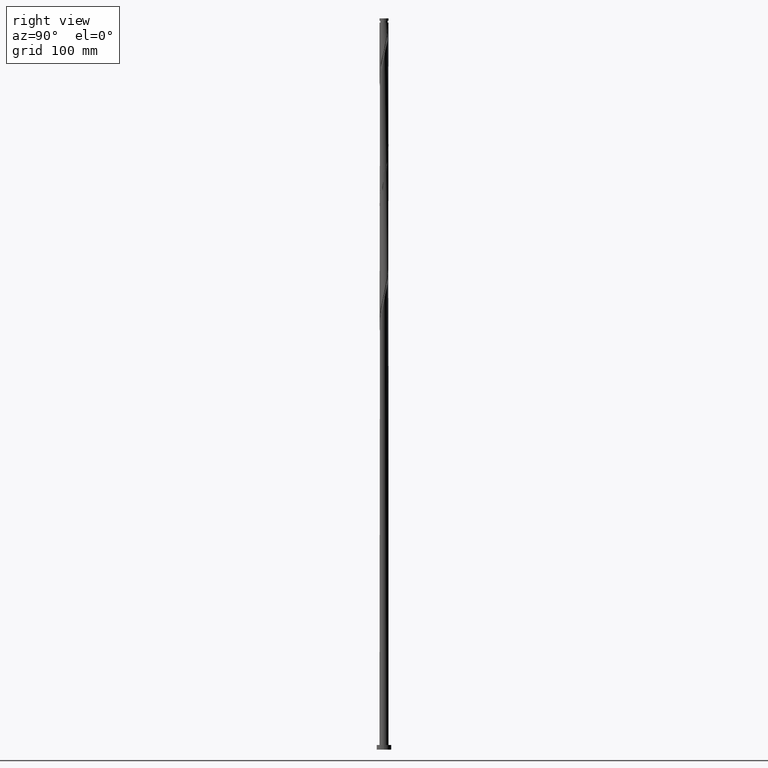
[diagram: clean part render]
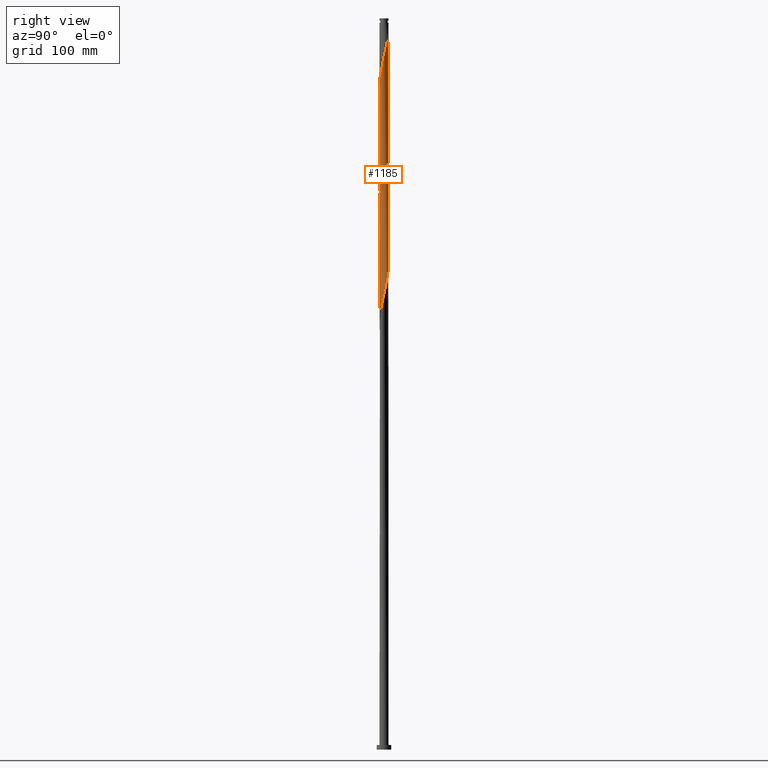
[diagram: same view with one face highlighted and labeled with its STEP entity id]
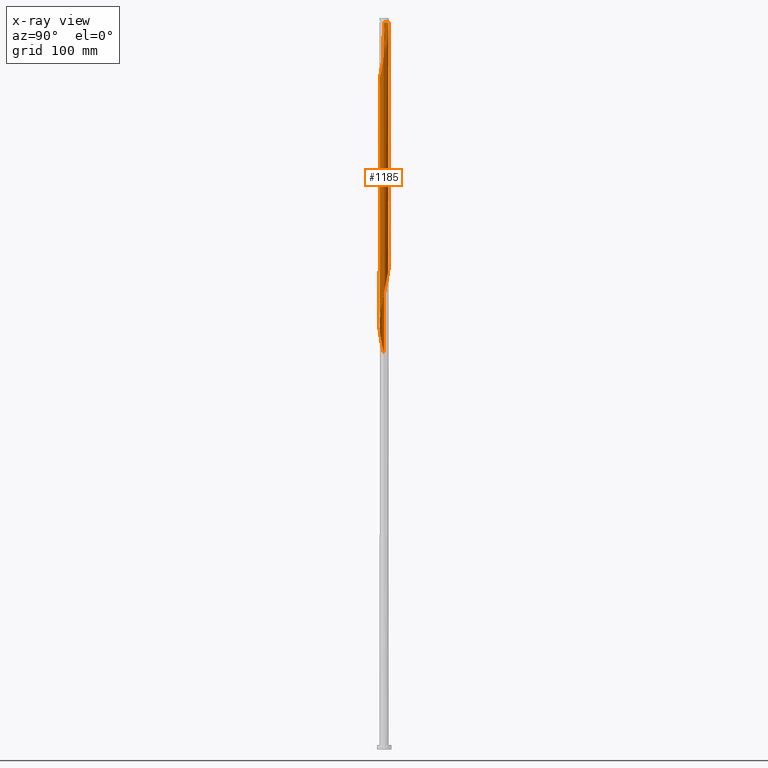
[diagram: x-ray of the same camera — body ghosted, the highlighted face saturated]
A machine part, right view. The second image highlights one B-rep face of the part: STEP entity #1185.
The next image is the same camera in x-ray: the body ghosted, the highlighted face saturated — about 0% of this face is hidden behind the body in this view.
In plain terms, the highlighted cylindrical surface (bore or boss wall) has radius 5 mm, axis along (-0, -0, -1).
Its self-contained STEP definition (entity closure, byte-faithful):
#9 = CARTESIAN_POINT ( 'NONE',  ( 4.886971201682697163, 1.057124625540423413, 504.1873591156045222 ) ) ;
#15 = ORIENTED_EDGE ( 'NONE', *, *, #484, .F. ) ;
#21 = CARTESIAN_POINT ( 'NONE',  ( -0.1749036129582328125, -4.996939936218382172, 465.5908678875343298 ) ) ;
#29 = CARTESIAN_POINT ( 'NONE',  ( -0.6499511258119761159, -4.957576377026965631, 721.7312187647274868 ) ) ;
#45 = CARTESIAN_POINT ( 'NONE',  ( -4.965429427042145960, -0.5869502577424863254, 693.6610433261308799 ) ) ;
#56 = CARTESIAN_POINT ( 'NONE',  ( 4.886971201682704269, -1.057124625540427854, 753.3101661331485275 ) ) ;
#66 = CARTESIAN_POINT ( 'NONE',  ( -2.931160507146904681, -4.050715749264861110, 711.2049029752537308 ) ) ;
#86 = CARTESIAN_POINT ( 'NONE',  ( 2.889359162484386623, 4.101616499374434177, 653.3101661331485275 ) ) ;
#104 = CARTESIAN_POINT ( 'NONE',  ( 1.457076892166168980, 4.782983057707340890, 784.8891135015696818 ) ) ;
#110 = CARTESIAN_POINT ( 'NONE',  ( -0.1749036129582328125, -4.996939936218382172, 598.9242012208676442 ) ) ;
#121 = CARTESIAN_POINT ( 'NONE',  ( 4.493269221328091589, 2.232081087783037709, 509.4505170103415139 ) ) ;
#126 = CARTESIAN_POINT ( 'NONE',  ( 4.801098604423229332, 1.396227843371344424, 763.8364819226222835 ) ) ;
#130 = CARTESIAN_POINT ( 'NONE',  ( -1.853406167889784628, 4.662246224150025320, 674.3627977120958121 ) ) ;
#134 = CARTESIAN_POINT ( 'NONE',  ( -4.974567045559859402, -0.6521786465401323563, 569.0996398173590478 ) ) ;
#136 = ORIENTED_EDGE ( 'NONE', *, *, #1807, .T. ) ;
#147 = CARTESIAN_POINT ( 'NONE',  ( -3.525055956709929106, -3.570102908858077573, 583.1347275366572376 ) ) ;
#161 = CARTESIAN_POINT ( 'NONE',  ( 3.207207559597159641, 3.835859704116254321, 518.2224468349027120 ) ) ;
#168 = FACE_OUTER_BOUND ( 'NONE', #1891, .T. ) ;
#173 = CARTESIAN_POINT ( 'NONE',  ( -4.886971201682697163, -1.057124625540422302, 437.5206924489379503 ) ) ;
#182 = CARTESIAN_POINT ( 'NONE',  ( -0.5889618610978728519, -4.982447009647488656, 463.8364819226221698 ) ) ;
#194 = CARTESIAN_POINT ( 'NONE',  ( -2.532103672393922977, -4.311432591639259293, 455.0645520980608012 ) ) ;
#202 = CARTESIAN_POINT ( 'NONE',  ( -2.595508630546288664, -4.293598633609439830, 712.9592889401660614 ) ) ;
#205 = CARTESIAN_POINT ( 'NONE',  ( -4.087607399536863362, 2.879490536058676664, 686.6434994664817850 ) ) ;
#212 = CARTESIAN_POINT ( 'NONE',  ( 4.994316278799820985, -0.2383378008524582869, 756.8189380629731886 ) ) ;
#234 = CARTESIAN_POINT ( 'NONE',  ( -4.505806327405627698, -2.167419973127376664, 700.6785871857800885 ) ) ;
#244 = CARTESIAN_POINT ( 'NONE',  ( 0.1749036129582310084, -4.996939936218388389, 725.2399906945519206 ) ) ;
#248 = CARTESIAN_POINT ( 'NONE',  ( -4.493269221328091589, -2.232081087783038154, 442.7838503436748852 ) ) ;
#255 = DIRECTION ( 'NONE',  ( -0.000000000000000000, -0.000000000000000000, -1.000000000000000000 ) ) ;
#268 = CARTESIAN_POINT ( 'NONE',  ( 4.994316278799814768, 0.2383378008524554004, 634.0119205191134597 ) ) ;
#277 = CARTESIAN_POINT ( 'NONE',  ( -1.457076892166162319, 4.782983057707333785, 672.6084117471832542 ) ) ;
#283 = CARTESIAN_POINT ( 'NONE',  ( -0.5889618610978690771, 4.982447009647495761, 793.6610433261313347 ) ) ;
#287 = CARTESIAN_POINT ( 'NONE',  ( -0.2391546351814064497, 5.011432862789276577, 667.3452538524467172 ) ) ;
#289 = CARTESIAN_POINT ( 'NONE',  ( -4.799375357805534925, -1.462070604540713914, 572.6084117471834816 ) ) ;
#296 = LINE ( 'NONE', #1757, #829 ) ;
#299 = CARTESIAN_POINT ( 'NONE',  ( -4.064598413571486546, -2.941206217551772362, 579.6259556068328038 ) ) ;
#301 = CARTESIAN_POINT ( 'NONE',  ( -5.000000000000007994, -4.329326641535641108E-16, 691.1634970902542818 ) ) ;
#305 = AXIS2_PLACEMENT_3D ( 'NONE', #980, #255, #1145 ) ;
#308 = DIRECTION ( 'NONE',  ( -0.000000000000000000, -0.000000000000000000, -1.000000000000000000 ) ) ;
#310 = CARTESIAN_POINT ( 'NONE',  ( -2.174848182303464661, -4.521248683904080856, 590.1522713963063325 ) ) ;
#314 = EDGE_CURVE ( 'NONE', #340, #1834, #1340, .T. ) ;
#325 = CARTESIAN_POINT ( 'NONE',  ( -4.493269221328091589, -2.232081087783038154, 576.1171836770082564 ) ) ;
#333 = CARTESIAN_POINT ( 'NONE',  ( -4.886971201682697163, -1.057124625540422302, 570.8540257822712647 ) ) ;
#340 = VERTEX_POINT ( 'NONE', #301 ) ;
#347 = CARTESIAN_POINT ( 'NONE',  ( 0.6499511258119734514, -4.957576377026960301, 469.0996398173589910 ) ) ;
#357 = CARTESIAN_POINT ( 'NONE',  ( -3.207207559597157420, -3.835859704116256097, 451.5557801682361401 ) ) ;
#368 = CARTESIAN_POINT ( 'NONE',  ( 2.931160507146896244, -4.050715749264857557, 479.6259556068326333 ) ) ;
#376 = CARTESIAN_POINT ( 'NONE',  ( 4.493269221328098695, -2.232081087783042594, 748.0470082384116495 ) ) ;
#379 = CARTESIAN_POINT ( 'NONE',  ( 4.646322289566814590, 1.847075846161874590, 507.6961310454291265 ) ) ;
#386 = CARTESIAN_POINT ( 'NONE',  ( -1.457076892166166315, -4.782983057707340890, 718.2224468349028257 ) ) ;
#413 = CARTESIAN_POINT ( 'NONE',  ( 2.174848182303464661, -4.521248683904088850, 734.0119205191135734 ) ) ;
#422 = CARTESIAN_POINT ( 'NONE',  ( 4.801098604423221339, -1.396227843371345312, 626.9943766594643648 ) ) ;
#424 = CARTESIAN_POINT ( 'NONE',  ( -4.999999999999915623, 0.000000000000000000, 795.4154292910432105 ) ) ;
#427 = CARTESIAN_POINT ( 'NONE',  ( 1.457076892166162319, -4.782983057707333785, 472.6084117471835384 ) ) ;
#434 = CARTESIAN_POINT ( 'NONE',  ( 5.000000000000000000, -5.911770172579741004E-15, 633.0006948251653967 ) ) ;
#452 = CARTESIAN_POINT ( 'NONE',  ( 3.266812383747518922, 3.807832864920281501, 776.1171836770084838 ) ) ;
#459 = CARTESIAN_POINT ( 'NONE',  ( 1.401013013115388173, 4.817552990352508502, 526.9943766594642511 ) ) ;
#463 = CARTESIAN_POINT ( 'NONE',  ( 2.595508630546292217, 4.293598633609438942, 779.6259556068326901 ) ) ;
#464 = VERTEX_POINT ( 'NONE', #1453 ) ;
#471 = CARTESIAN_POINT ( 'NONE',  ( -3.557909197405964008, 3.513016103437906157, 549.8013942033238663 ) ) ;
#473 = DIRECTION ( 'NONE',  ( -0.000000000000000000, -0.000000000000000000, -1.000000000000000000 ) ) ;
#484 = EDGE_CURVE ( 'NONE', #895, #1834, #675, .T. ) ;
#485 = CARTESIAN_POINT ( 'NONE',  ( 3.266812383747511817, -3.807832864920277061, 614.7136749050782782 ) ) ;
#493 = CARTESIAN_POINT ( 'NONE',  ( 1.787930597709427083, 4.669400837128293347, 525.2399906945518069 ) ) ;
#505 = CARTESIAN_POINT ( 'NONE',  ( -0.5889618610978728519, -4.982447009647488656, 597.1698152559552000 ) ) ;
#515 = CARTESIAN_POINT ( 'NONE',  ( 2.595508630546283335, -4.293598633609436277, 477.8715696419204164 ) ) ;
#524 = CIRCLE ( 'NONE', #305, 4.999999999999915623 ) ;
#527 = CARTESIAN_POINT ( 'NONE',  ( -2.931160507146898020, 4.050715749264855781, 679.6259556068326901 ) ) ;
#535 = CARTESIAN_POINT ( 'NONE',  ( 0.5889618610978697433, -4.982447009647495761, 726.9943766594644785 ) ) ;
#537 = CARTESIAN_POINT ( 'NONE',  ( 4.994316278799814768, 0.2383378008524554004, 500.6785871857800316 ) ) ;
#545 = CARTESIAN_POINT ( 'NONE',  ( -3.794827185140709158, -3.255654563204924745, 448.0470082384115926 ) ) ;
#547 = EDGE_CURVE ( 'NONE', #1225, #895, #2077, .T. ) ;
#553 = CARTESIAN_POINT ( 'NONE',  ( -1.853406167889788625, -4.662246224150031537, 716.4680608699908362 ) ) ;
#569 = VERTEX_POINT ( 'NONE', #1694 ) ;
#582 = CARTESIAN_POINT ( 'NONE',  ( 5.000000000000000000, -5.911770172579741004E-15, 633.0006948251653967 ) ) ;
#590 = CARTESIAN_POINT ( 'NONE',  ( 4.916793342044511128, -0.9983974706497565910, 495.4154292910432673 ) ) ;
#601 = CARTESIAN_POINT ( 'NONE',  ( 4.493269221328091589, 2.232081087783037709, 642.7838503436747715 ) ) ;
#607 = CARTESIAN_POINT ( 'NONE',  ( 2.224457399218039644, 4.477922428879734795, 781.3803415717450207 ) ) ;
#609 = ORIENTED_EDGE ( 'NONE', *, *, #960, .T. ) ;
#613 = CARTESIAN_POINT ( 'NONE',  ( 4.278933817449791732, 2.586643652667402371, 644.5382363085869883 ) ) ;
#620 = CARTESIAN_POINT ( 'NONE',  ( 1.060747616442546004, 4.903719891264652020, 786.6434994664817850 ) ) ;
#625 = CARTESIAN_POINT ( 'NONE',  ( 3.849006011064415311, -3.218199341955539250, 618.2224468349030531 ) ) ;
#632 = ORIENTED_EDGE ( 'NONE', *, *, #2066, .F. ) ;
#635 = CARTESIAN_POINT ( 'NONE',  ( 2.532103672393923866, 4.311432591639258405, 655.0645520980607444 ) ) ;
#637 = CARTESIAN_POINT ( 'NONE',  ( 1.060747616442539787, -4.903719891264644914, 604.1873591156045222 ) ) ;
#643 = CARTESIAN_POINT ( 'NONE',  ( 0.1749036129582320631, 4.996939936218380396, 665.5908678875345004 ) ) ;
#648 = CARTESIAN_POINT ( 'NONE',  ( -4.278933817449789956, -2.586643652667403703, 577.8715696419204733 ) ) ;
#659 = CARTESIAN_POINT ( 'NONE',  ( -2.931160507146898020, 4.050715749264855781, 546.2926222734994326 ) ) ;
#670 = CARTESIAN_POINT ( 'NONE',  ( -0.6499511258119736734, 4.957576377026959413, 535.7663064840256766 ) ) ;
#675 =( BOUNDED_CURVE ( )  B_SPLINE_CURVE ( 2, ( #582, #789, #1284, #1979, #422, #1114, #1823, #2167, #1512, #625, #2041, #485, #799, #2061, #1699, #1170, #1326, #637, #1034, #1337, #110, #505, #1372, #2213, #2234, #310, #1529, #1899, #2222, #147, #1182, #299, #648, #325, #1877, #289, #333, #134, #1491, #1195, #2028, #833, #2200, #808, #820, #1502, #1856, #1688, #471, #1162, #659, #1868, #998, #1353, #1008, #2188, #670, #1713, #1363, #2018, #2052, #459, #493, #1888, #1725, #1024, #161, #845, #1540, #1151, #988, #121, #379, #1567, #9, #1045, #537, #1908, #1074, #590, #885, #1987, #1417, #1579, #1242, #1747, #1941, #1218, #368, #515, #1591, #1405, #427, #719, #347, #1917, #21, #182, #1737, #2113, #708, #939, #194, #2102, #357, #1205, #545, #763, #1290, #248, #1783, #1232, #173, #2155, #874, #1929, #1066 ),
 .UNSPECIFIED., .F., .T. ) 
 B_SPLINE_CURVE_WITH_KNOTS ( ( 3, 2, 2, 2, 2, 2, 2, 2, 2, 2, 2, 2, 2, 2, 2, 2, 2, 2, 2, 2, 2, 2, 2, 2, 2, 2, 2, 2, 2, 2, 2, 2, 2, 2, 2, 2, 2, 2, 2, 2, 2, 2, 2, 2, 2, 2, 2, 2, 2, 2, 2, 2, 2, 2, 2, 2, 2, 2, 3 ),
 ( 0.5545295809515957686, 0.5592105263157894912, 0.5657894736842105088, 0.5723684210526315264, 0.5789473684210526550, 0.5855263157894736725, 0.5921052631578946901, 0.5986842105263158187, 0.6052631578947368363, 0.6118421052631578538, 0.6184210526315789824, 0.6250000000000000000, 0.6315789473684210176, 0.6381578947368421462, 0.6447368421052631637, 0.6513157894736841813, 0.6578947368421053099, 0.6644736842105263275, 0.6710526315789473450, 0.6776315789473684736, 0.6842105263157894912, 0.6907894736842105088, 0.6973684210526315264, 0.7039473684210526550, 0.7105263157894736725, 0.7171052631578946901, 0.7236842105263158187, 0.7302631578947368363, 0.7368421052631578538, 0.7434210526315789824, 0.7500000000000000000, 0.7565789473684210176, 0.7631578947368421462, 0.7697368421052631637, 0.7763157894736841813, 0.7828947368421053099, 0.7894736842105263275, 0.7960526315789473450, 0.8026315789473684736, 0.8092105263157894912, 0.8157894736842105088, 0.8223684210526315264, 0.8289473684210526550, 0.8355263157894736725, 0.8421052631578946901, 0.8486842105263158187, 0.8552631578947368363, 0.8618421052631578538, 0.8684210526315789824, 0.8750000000000000000, 0.8815789473684210176, 0.8881578947368422572, 0.8947368421052630527, 0.9013157894736842923, 0.9078947368421053099, 0.9144736842105263275, 0.9210526315789473450, 0.9276315789473683626, 0.9295295809515957686 ),
 .UNSPECIFIED. ) 
 CURVE ( )  GEOMETRIC_REPRESENTATION_ITEM ( )  RATIONAL_B_SPLINE_CURVE ( ( 0.9078162034606489517, 0.9068816855934562771, 0.9090909090909780055, 0.9059859027334048465, 0.9090909090909780055, 0.9059859027334048465, 0.9090909090909780055, 0.9059859027334048465, 0.9090909090909780055, 0.9059859027334048465, 0.9090909090909780055, 0.9059859027334048465, 0.9090909090909780055, 0.9059859027334048465, 0.9090909090909780055, 0.9059859027334048465, 0.9090909090909780055, 0.9059859027334048465, 0.9090909090909780055, 0.9059859027334048465, 0.9090909090909780055, 0.9059859027334048465, 0.9090909090909780055, 0.9059859027334048465, 0.9090909090909780055, 0.9059859027334048465, 0.9090909090909780055, 0.9059859027334048465, 0.9090909090909780055, 0.9059859027334048465, 0.9090909090909780055, 0.9059859027334048465, 0.9090909090909780055, 0.9059859027334048465, 0.9090909090909780055, 0.9059859027334048465, 0.9090909090909780055, 0.9059859027334048465, 0.9090909090909780055, 0.9059859027334048465, 0.9090909090909780055, 0.9059859027334048465, 0.9090909090909780055, 0.9059859027334048465, 0.9090909090909780055, 0.9059859027334048465, 0.9090909090909780055, 0.9059859027334048465, 0.9090909090909780055, 0.9059859027334048465, 0.9090909090909780055, 0.9059859027334048465, 0.9090909090909780055, 0.9059859027334048465, 0.9090909090909780055, 0.9059859027334048465, 0.9090909090909780055, 0.9059859027334048465, 0.9090909090909780055, 0.9059859027334048465, 0.9090909090909780055, 0.9059859027334048465, 0.9090909090909780055, 0.9059859027334048465, 0.9090909090909780055, 0.9059859027334048465, 0.9090909090909780055, 0.9059859027334048465, 0.9090909090909780055, 0.9059859027334048465, 0.9090909090909780055, 0.9059859027334048465, 0.9090909090909780055, 0.9059859027334048465, 0.9090909090909780055, 0.9059859027334048465, 0.9090909090909780055, 0.9059859027334048465, 0.9090909090909780055, 0.9059859027334048465, 0.9090909090909780055, 0.9059859027334048465, 0.9090909090909780055, 0.9059859027334048465, 0.9090909090909780055, 0.9059859027334048465, 0.9090909090909780055, 0.9059859027334048465, 0.9090909090909780055, 0.9059859027334048465, 0.9090909090909780055, 0.9059859027334048465, 0.9090909090909780055, 0.9059859027334048465, 0.9090909090909780055, 0.9059859027334048465, 0.9090909090909780055, 0.9059859027334048465, 0.9090909090909780055, 0.9059859027334048465, 0.9090909090909780055, 0.9059859027334048465, 0.9090909090909780055, 0.9059859027334048465, 0.9090909090909780055, 0.9059859027334048465, 0.9090909090909780055, 0.9059859027334048465, 0.9090909090909780055, 0.9059859027334048465, 0.9090909090909780055, 0.9059859027334048465, 0.9090909090909780055, 0.9059859027334048465, 0.9090909090909780055, 0.9081951262309265749, 0.9078162034606489517 ) ) 
 REPRESENTATION_ITEM ( '' )  );
#681 = CARTESIAN_POINT ( 'NONE',  ( -4.326208788009311412, 2.540781730161816743, 688.3978854313940019 ) ) ;
#708 = CARTESIAN_POINT ( 'NONE',  ( -1.787930597709424640, -4.669400837128295123, 458.5733240278852918 ) ) ;
#715 = CARTESIAN_POINT ( 'NONE',  ( 1.401013013115385286, -4.817552990352518272, 730.5031485892889123 ) ) ;
#719 = CARTESIAN_POINT ( 'NONE',  ( 1.060747616442539787, -4.903719891264644914, 470.8540257822712647 ) ) ;
#728 = CARTESIAN_POINT ( 'NONE',  ( -3.849006011064424637, -3.218199341955541026, 705.9417450805170802 ) ) ;
#736 = CARTESIAN_POINT ( 'NONE',  ( 4.974567045559866507, -0.6521786465401351318, 755.0645520980609717 ) ) ;
#747 = CARTESIAN_POINT ( 'NONE',  ( -0.2391546351814095583, -5.011432862789284570, 723.4856047296397037 ) ) ;
#759 = CARTESIAN_POINT ( 'NONE',  ( -3.266812383747518478, -3.807832864920281501, 709.4505170103416276 ) ) ;
#763 = CARTESIAN_POINT ( 'NONE',  ( -4.064598413571486546, -2.941206217551772362, 446.2926222734992621 ) ) ;
#786 = CARTESIAN_POINT ( 'NONE',  ( 5.000000000000000000, -5.911770172579741004E-15, 633.0006948251653967 ) ) ;
#789 = CARTESIAN_POINT ( 'NONE',  ( 4.999999999999998224, -0.2944932087671892074, 631.7501677109801221 ) ) ;
#799 = CARTESIAN_POINT ( 'NONE',  ( 2.931160507146896244, -4.050715749264857557, 612.9592889401659477 ) ) ;
#808 = CARTESIAN_POINT ( 'NONE',  ( -4.685403866801933326, 1.794058216092931701, 558.5733240278855192 ) ) ;
#817 = CARTESIAN_POINT ( 'NONE',  ( -2.224457399218035203, 4.477922428879730354, 676.1171836770079153 ) ) ;
#820 = CARTESIAN_POINT ( 'NONE',  ( -4.505806327405622369, 2.167419973127374888, 556.8189380629729612 ) ) ;
#829 = VECTOR ( 'NONE', #1031, 1000.000000000000000 ) ;
#833 = CARTESIAN_POINT ( 'NONE',  ( -4.916793342044511128, 0.9983974706497559248, 562.0820959577098392 ) ) ;
#845 = CARTESIAN_POINT ( 'NONE',  ( 3.525055956709929550, 3.570102908858077573, 516.4680608699906088 ) ) ;
#874 = CARTESIAN_POINT ( 'NONE',  ( -4.994316278799814768, -0.2383378008524572045, 434.0119205191134029 ) ) ;
#885 = CARTESIAN_POINT ( 'NONE',  ( 4.801098604423221339, -1.396227843371345312, 493.6610433261309936 ) ) ;
#895 = VERTEX_POINT ( 'NONE', #786 ) ;
#897 = CARTESIAN_POINT ( 'NONE',  ( -3.849006011064417088, 3.218199341955536585, 684.8891135015696818 ) ) ;
#904 = CARTESIAN_POINT ( 'NONE',  ( 4.916793342044517345, 0.9983974706497559248, 762.0820959577100666 ) ) ;
#906 =( BOUNDED_CURVE ( )  B_SPLINE_CURVE ( 2, ( #1587, #1768, #45, #1063, #1435, #1276, #234, #1631, #1950, #728, #1424, #759, #66, #202, #1971, #553, #386, #2119, #29, #747, #244, #535, #1447, #715, #1083, #413, #1238, #915, #1614, #1412, #2143, #1227, #2110, #376, #1070, #1779, #56, #736, #212, #1264, #1962, #904, #126, #1850, #2170, #1667, #2022, #2011, #1825, #452, #1154, #463, #607, #1330, #104, #620, #992, #1319, #1487, #283, #1655 ),
 .UNSPECIFIED., .F., .T. ) 
 B_SPLINE_CURVE_WITH_KNOTS ( ( 3, 2, 2, 2, 2, 2, 2, 2, 2, 2, 2, 2, 2, 2, 2, 2, 2, 2, 2, 2, 2, 2, 2, 2, 2, 2, 2, 2, 2, 2, 3 ),
 ( 0.5545295809515948804, 0.5592105263157894912, 0.5657894736842105088, 0.5723684210526316374, 0.5789473684210526550, 0.5855263157894736725, 0.5921052631578946901, 0.5986842105263157077, 0.6052631578947368363, 0.6118421052631579649, 0.6184210526315789824, 0.6250000000000000000, 0.6315789473684210176, 0.6381578947368420351, 0.6447368421052631637, 0.6513157894736842923, 0.6578947368421053099, 0.6644736842105263275, 0.6710526315789473450, 0.6776315789473683626, 0.6842105263157894912, 0.6907894736842105088, 0.6973684210526316374, 0.7039473684210526550, 0.7105263157894736725, 0.7171052631578946901, 0.7236842105263157077, 0.7302631578947368363, 0.7368421052631579649, 0.7434210526315789824, 0.7500000000000000000 ),
 .UNSPECIFIED. ) 
 CURVE ( )  GEOMETRIC_REPRESENTATION_ITEM ( )  RATIONAL_B_SPLINE_CURVE ( ( 0.9078162034606551689, 0.9068816855934616061, 0.9090909090909837786, 0.9059859027334105086, 0.9090909090909837786, 0.9059859027334105086, 0.9090909090909837786, 0.9059859027334105086, 0.9090909090909837786, 0.9059859027334105086, 0.9090909090909837786, 0.9059859027334105086, 0.9090909090909837786, 0.9059859027334105086, 0.9090909090909837786, 0.9059859027334105086, 0.9090909090909837786, 0.9059859027334105086, 0.9090909090909837786, 0.9059859027334105086, 0.9090909090909837786, 0.9059859027334105086, 0.9090909090909837786, 0.9059859027334105086, 0.9090909090909837786, 0.9059859027334105086, 0.9090909090909837786, 0.9059859027334105086, 0.9090909090909837786, 0.9059859027334105086, 0.9090909090909837786, 0.9059859027334105086, 0.9090909090909837786, 0.9059859027334105086, 0.9090909090909837786, 0.9059859027334105086, 0.9090909090909837786, 0.9059859027334105086, 0.9090909090909837786, 0.9059859027334105086, 0.9090909090909837786, 0.9059859027334105086, 0.9090909090909837786, 0.9059859027334105086, 0.9090909090909837786, 0.9059859027334105086, 0.9090909090909837786, 0.9059859027334105086, 0.9090909090909837786, 0.9059859027334105086, 0.9090909090909837786, 0.9059859027334105086, 0.9090909090909837786, 0.9059859027334105086, 0.9090909090909837786, 0.9059859027334105086, 0.9090909090909837786, 0.9059859027334105086, 0.9090909090909837786, 0.9059859027334105086, 0.9090909090909837786 ) ) 
 REPRESENTATION_ITEM ( '' )  );
#915 = CARTESIAN_POINT ( 'NONE',  ( 2.889359162484387511, -4.101616499374442171, 737.5206924489381208 ) ) ;
#939 = CARTESIAN_POINT ( 'NONE',  ( -2.174848182303464661, -4.521248683904080856, 456.8189380629730749 ) ) ;
#947 = AXIS2_PLACEMENT_3D ( 'NONE', #1547, #308, #1050 ) ;
#960 = EDGE_CURVE ( 'NONE', #464, #895, #296, .T. ) ;
#964 = CARTESIAN_POINT ( 'NONE',  ( 4.799375357805534925, 1.462070604540711249, 639.2750784138498830 ) ) ;
#972 = CARTESIAN_POINT ( 'NONE',  ( 3.207207559597159641, 3.835859704116254321, 651.5557801682361969 ) ) ;
#980 = CARTESIAN_POINT ( 'NONE',  ( 0.000000000000000000, 0.000000000000000000, 795.4154292910432105 ) ) ;
#988 = CARTESIAN_POINT ( 'NONE',  ( 4.278933817449791732, 2.586643652667402371, 511.2049029752537876 ) ) ;
#992 = CARTESIAN_POINT ( 'NONE',  ( 0.6499511258119768931, 4.957576377026967407, 788.3978854313941156 ) ) ;
#995 = CARTESIAN_POINT ( 'NONE',  ( -1.060747616442540675, 4.903719891264643138, 670.8540257822711510 ) ) ;
#998 = CARTESIAN_POINT ( 'NONE',  ( -2.224457399218035203, 4.477922428879730354, 542.7838503436746578 ) ) ;
#1005 = CARTESIAN_POINT ( 'NONE',  ( -5.000000000000000000, 1.910875207298502123E-15, 699.6673614918320254 ) ) ;
#1008 = CARTESIAN_POINT ( 'NONE',  ( -1.457076892166162319, 4.782983057707333785, 539.2750784138501103 ) ) ;
#1020 = VECTOR ( 'NONE', #473, 1000.000000000000000 ) ;
#1024 = CARTESIAN_POINT ( 'NONE',  ( 2.889359162484386623, 4.101616499374434177, 519.9768327998150426 ) ) ;
#1031 = DIRECTION ( 'NONE',  ( -0.000000000000000000, -0.000000000000000000, -1.000000000000000000 ) ) ;
#1034 = CARTESIAN_POINT ( 'NONE',  ( 0.6499511258119734514, -4.957576377026960301, 602.4329731506923054 ) ) ;
#1045 = CARTESIAN_POINT ( 'NONE',  ( 4.974567045559859402, 0.6521786465401315791, 502.4329731506923622 ) ) ;
#1050 = DIRECTION ( 'NONE',  ( -1.000000000000000000, 0.000000000000000000, 0.000000000000000000 ) ) ;
#1053 = CARTESIAN_POINT ( 'NONE',  ( -4.916793342044511128, 0.9983974706497559248, 695.4154292910433242 ) ) ;
#1063 = CARTESIAN_POINT ( 'NONE',  ( -4.916793342044517345, -0.9983974706497563689, 695.4154292910433242 ) ) ;
#1066 = CARTESIAN_POINT ( 'NONE',  ( -5.000000000000000000, 3.911322689939121366E-15, 433.0006948251653967 ) ) ;
#1070 = CARTESIAN_POINT ( 'NONE',  ( 4.646322289566820807, -1.847075846161880142, 749.8013942033239800 ) ) ;
#1074 = CARTESIAN_POINT ( 'NONE',  ( 4.965429427042139743, -0.5869502577424862144, 497.1698152559554273 ) ) ;
#1083 = CARTESIAN_POINT ( 'NONE',  ( 1.787930597709425751, -4.669400837128304005, 732.2575345542010155 ) ) ;
#1114 = CARTESIAN_POINT ( 'NONE',  ( 4.685403866801931549, -1.794058216092933922, 625.2399906945521479 ) ) ;
#1140 = CARTESIAN_POINT ( 'NONE',  ( 0.5889618610978712976, 4.982447009647488656, 663.8364819226220561 ) ) ;
#1145 = DIRECTION ( 'NONE',  ( -1.000000000000000000, 0.000000000000000000, 0.000000000000000000 ) ) ;
#1151 = CARTESIAN_POINT ( 'NONE',  ( 4.064598413571489210, 2.941206217551771473, 512.9592889401660614 ) ) ;
#1154 = CARTESIAN_POINT ( 'NONE',  ( 2.931160507146907346, 4.050715749264861110, 777.8715696419204733 ) ) ;
#1162 = CARTESIAN_POINT ( 'NONE',  ( -3.266812383747513149, 3.807832864920276172, 548.0470082384116495 ) ) ;
#1170 = CARTESIAN_POINT ( 'NONE',  ( 1.853406167889783740, -4.662246224150026208, 607.6961310454290697 ) ) ;
#1182 = CARTESIAN_POINT ( 'NONE',  ( -3.794827185140709158, -3.255654563204924745, 581.3803415717450207 ) ) ;
#1185 = ADVANCED_FACE ( 'NONE', ( #168 ), #2240, .T. ) ;
#1192 = ORIENTED_EDGE ( 'NONE', *, *, #1702, .F. ) ;
#1195 = CARTESIAN_POINT ( 'NONE',  ( -5.014065512039769246, 0.1755030448352179751, 565.5908678875343867 ) ) ;
#1205 = CARTESIAN_POINT ( 'NONE',  ( -3.525055956709929106, -3.570102908858077573, 449.8013942033238095 ) ) ;
#1218 = CARTESIAN_POINT ( 'NONE',  ( 3.266812383747511817, -3.807832864920277061, 481.3803415717450207 ) ) ;
#1225 = VERTEX_POINT ( 'NONE', #1005 ) ;
#1227 = CARTESIAN_POINT ( 'NONE',  ( 4.064598413571493651, -2.941206217551779023, 744.5382363085872157 ) ) ;
#1232 = CARTESIAN_POINT ( 'NONE',  ( -4.799375357805534925, -1.462070604540713914, 439.2750784138502809 ) ) ;
#1238 = CARTESIAN_POINT ( 'NONE',  ( 2.532103672393926530, -4.311432591639266398, 735.7663064840259040 ) ) ;
#1242 = CARTESIAN_POINT ( 'NONE',  ( 4.087607399536862474, -2.879490536058677552, 486.6434994664818419 ) ) ;
#1264 = CARTESIAN_POINT ( 'NONE',  ( 5.014065512039776351, 0.1755030448352140060, 758.5733240278854055 ) ) ;
#1276 = CARTESIAN_POINT ( 'NONE',  ( -4.685403866801941319, -1.794058216092933034, 698.9242012208680990 ) ) ;
#1284 = CARTESIAN_POINT ( 'NONE',  ( 4.965429427042139743, -0.5869502577424862144, 630.5031485892890259 ) ) ;
#1290 = CARTESIAN_POINT ( 'NONE',  ( -4.278933817449789956, -2.586643652667403703, 444.5382363085871020 ) ) ;
#1299 = CARTESIAN_POINT ( 'NONE',  ( 5.000000000000001776, 0.1192366712258191991, 633.5070178436055812 ) ) ;
#1319 = CARTESIAN_POINT ( 'NONE',  ( 0.2391546351814080318, 5.011432862789284570, 790.1522713963065598 ) ) ;
#1323 = CARTESIAN_POINT ( 'NONE',  ( -0.6499511258119736734, 4.957576377026959413, 669.0996398173589341 ) ) ;
#1326 = CARTESIAN_POINT ( 'NONE',  ( 1.457076892166162319, -4.782983057707333785, 605.9417450805166254 ) ) ;
#1330 = CARTESIAN_POINT ( 'NONE',  ( 1.853406167889789069, 4.662246224150032425, 783.1347275366573513 ) ) ;
#1331 = ORIENTED_EDGE ( 'NONE', *, *, #960, .F. ) ;
#1337 = CARTESIAN_POINT ( 'NONE',  ( 0.2391546351814050897, -5.011432862789275688, 600.6785871857800885 ) ) ;
#1340 = LINE ( 'NONE', #2030, #1020 ) ;
#1349 = CARTESIAN_POINT ( 'NONE',  ( 0.9949874371066296241, 4.899999999999997691, 662.0820959577099529 ) ) ;
#1353 = CARTESIAN_POINT ( 'NONE',  ( -1.853406167889784628, 4.662246224150025320, 541.0294643787626683 ) ) ;
#1363 = CARTESIAN_POINT ( 'NONE',  ( 0.1749036129582320631, 4.996939936218380396, 532.2575345542010155 ) ) ;
#1372 = CARTESIAN_POINT ( 'NONE',  ( -0.9949874371066288470, -4.899999999999997691, 595.4154292910428694 ) ) ;
#1377 = LINE ( 'NONE', #2068, #2195 ) ;
#1385 = CARTESIAN_POINT ( 'NONE',  ( -3.557909197405964008, 3.513016103437906157, 683.1347275366571239 ) ) ;
#1397 = CARTESIAN_POINT ( 'NONE',  ( -4.801098604423221339, 1.396227843371343535, 693.6610433261308799 ) ) ;
#1405 = CARTESIAN_POINT ( 'NONE',  ( 1.853406167889783740, -4.662246224150026208, 474.3627977120959258 ) ) ;
#1412 = CARTESIAN_POINT ( 'NONE',  ( 3.525055956709933547, -3.570102908858086010, 741.0294643787624409 ) ) ;
#1417 = CARTESIAN_POINT ( 'NONE',  ( 4.505806327405622369, -2.167419973127374000, 490.1522713963063893 ) ) ;
#1424 = CARTESIAN_POINT ( 'NONE',  ( -3.557909197405970669, -3.513016103437910598, 707.6961310454292970 ) ) ;
#1435 = CARTESIAN_POINT ( 'NONE',  ( -4.801098604423229332, -1.396227843371344424, 697.1698152559556547 ) ) ;
#1447 = CARTESIAN_POINT ( 'NONE',  ( 0.9949874371066286249, -4.900000000000004796, 728.7487626243766954 ) ) ;
#1453 = CARTESIAN_POINT ( 'NONE',  ( 5.000000000000000888, 6.123233995736767268E-16, 795.4154292910433242 ) ) ;
#1460 = CARTESIAN_POINT ( 'NONE',  ( -4.965429427042139743, 0.5869502577424867695, 697.1698152559555410 ) ) ;
#1476 = ORIENTED_EDGE ( 'NONE', *, *, #547, .F. ) ;
#1479 = CARTESIAN_POINT ( 'NONE',  ( 3.525055956709929550, 3.570102908858077573, 649.8013942033240937 ) ) ;
#1487 = CARTESIAN_POINT ( 'NONE',  ( -0.1749036129582282328, 4.996939936218388389, 791.9066573612186630 ) ) ;
#1491 = CARTESIAN_POINT ( 'NONE',  ( -4.994316278799814768, -0.2383378008524572045, 567.3452538524467172 ) ) ;
#1502 = CARTESIAN_POINT ( 'NONE',  ( -4.326208788009311412, 2.540781730161816743, 555.0645520980608580 ) ) ;
#1508 = CARTESIAN_POINT ( 'NONE',  ( 1.401013013115388173, 4.817552990352508502, 660.3277099927976224 ) ) ;
#1512 = CARTESIAN_POINT ( 'NONE',  ( 4.087607399536862474, -2.879490536058677552, 619.9768327998149289 ) ) ;
#1529 = CARTESIAN_POINT ( 'NONE',  ( -2.532103672393922977, -4.311432591639259293, 588.3978854313941156 ) ) ;
#1540 = CARTESIAN_POINT ( 'NONE',  ( 3.794827185140709158, 3.255654563204924301, 514.7136749050783919 ) ) ;
#1547 = CARTESIAN_POINT ( 'NONE',  ( 0.000000000000000000, 0.000000000000000000, 800.0000000000000000 ) ) ;
#1551 = CARTESIAN_POINT ( 'NONE',  ( -4.685403866801933326, 1.794058216092931701, 691.9066573612187767 ) ) ;
#1567 = CARTESIAN_POINT ( 'NONE',  ( 4.799375357805534925, 1.462070604540711249, 505.9417450805169096 ) ) ;
#1579 = CARTESIAN_POINT ( 'NONE',  ( 4.326208788009311412, -2.540781730161817187, 488.3978854313940019 ) ) ;
#1587 = CARTESIAN_POINT ( 'NONE',  ( -5.000000000000007994, -4.329326641535641108E-16, 691.1634970902542818 ) ) ;
#1591 = CARTESIAN_POINT ( 'NONE',  ( 2.224457399218034759, -4.477922428879730354, 476.1171836770081427 ) ) ;
#1614 = CARTESIAN_POINT ( 'NONE',  ( 3.207207559597160973, -3.835859704116262758, 739.2750784138504514 ) ) ;
#1631 = CARTESIAN_POINT ( 'NONE',  ( -4.326208788009319406, -2.540781730161819851, 702.4329731506925327 ) ) ;
#1649 = CARTESIAN_POINT ( 'NONE',  ( 3.794827185140709158, 3.255654563204924301, 648.0470082384116495 ) ) ;
#1655 = CARTESIAN_POINT ( 'NONE',  ( -0.9949874371065993151, 4.899999999999929301, 795.4154292910433242 ) ) ;
#1667 = CARTESIAN_POINT ( 'NONE',  ( 4.326208788009319406, 2.540781730161819851, 769.0996398173590478 ) ) ;
#1670 = CARTESIAN_POINT ( 'NONE',  ( 4.064598413571489210, 2.941206217551771473, 646.2926222734993189 ) ) ;
#1688 = CARTESIAN_POINT ( 'NONE',  ( -3.849006011064417088, 3.218199341955536585, 551.5557801682363106 ) ) ;
#1691 = CARTESIAN_POINT ( 'NONE',  ( -5.000000000000000000, 3.911322689939121366E-15, 433.0006948251653967 ) ) ;
#1694 = CARTESIAN_POINT ( 'NONE',  ( -0.9949874371065993151, 4.899999999999929301, 795.4154292910433242 ) ) ;
#1699 = CARTESIAN_POINT ( 'NONE',  ( 2.224457399218034759, -4.477922428879730354, 609.4505170103414002 ) ) ;
#1702 = EDGE_CURVE ( 'NONE', #340, #569, #906, .T. ) ;
#1713 = CARTESIAN_POINT ( 'NONE',  ( -0.2391546351814064497, 5.011432862789276577, 534.0119205191133460 ) ) ;
#1725 = CARTESIAN_POINT ( 'NONE',  ( 2.532103672393923866, 4.311432591639258405, 521.7312187647272594 ) ) ;
#1732 = ORIENTED_EDGE ( 'NONE', *, *, #314, .T. ) ;
#1737 = CARTESIAN_POINT ( 'NONE',  ( -0.9949874371066288470, -4.899999999999997691, 462.0820959577098961 ) ) ;
#1747 = CARTESIAN_POINT ( 'NONE',  ( 3.849006011064415311, -3.218199341955539250, 484.8891135015695681 ) ) ;
#1757 = CARTESIAN_POINT ( 'NONE',  ( 5.000000000000000888, 6.123233995736767268E-16, 800.0000000000000000 ) ) ;
#1759 = CARTESIAN_POINT ( 'NONE',  ( -2.595508630546284223, 4.293598633609434501, 677.8715696419202459 ) ) ;
#1768 = CARTESIAN_POINT ( 'NONE',  ( -5.000000000000012434, -0.2944932087671355836, 692.4140242044395563 ) ) ;
#1772 = CARTESIAN_POINT ( 'NONE',  ( -5.000000000000001776, 0.2944932087671655041, 698.4168343776468646 ) ) ;
#1779 = CARTESIAN_POINT ( 'NONE',  ( 4.799375357805542919, -1.462070604540720353, 751.5557801682363106 ) ) ;
#1783 = CARTESIAN_POINT ( 'NONE',  ( -4.646322289566814590, -1.847075846161874813, 441.0294643787624409 ) ) ;
#1807 = EDGE_CURVE ( 'NONE', #1921, #569, #524, .T. ) ;
#1823 = CARTESIAN_POINT ( 'NONE',  ( 4.505806327405622369, -2.167419973127374000, 623.4856047296395900 ) ) ;
#1825 = CARTESIAN_POINT ( 'NONE',  ( 3.557909197405971558, 3.513016103437910154, 774.3627977120959258 ) ) ;
#1828 = CARTESIAN_POINT ( 'NONE',  ( 1.787930597709427083, 4.669400837128293347, 658.5733240278855192 ) ) ;
#1834 = VERTEX_POINT ( 'NONE', #1691 ) ;
#1836 = CARTESIAN_POINT ( 'NONE',  ( 4.886971201682697163, 1.057124625540423413, 637.5206924489377798 ) ) ;
#1844 = CARTESIAN_POINT ( 'NONE',  ( 4.974567045559859402, 0.6521786465401315791, 635.7663064840256766 ) ) ;
#1850 = CARTESIAN_POINT ( 'NONE',  ( 4.685403866801942208, 1.794058216092929925, 765.5908678875345004 ) ) ;
#1854 = CARTESIAN_POINT ( 'NONE',  ( 4.646322289566814590, 1.847075846161874590, 641.0294643787624409 ) ) ;
#1856 = CARTESIAN_POINT ( 'NONE',  ( -4.087607399536863362, 2.879490536058676664, 553.3101661331484138 ) ) ;
#1868 = CARTESIAN_POINT ( 'NONE',  ( -2.595508630546284223, 4.293598633609434501, 544.5382363085871020 ) ) ;
#1877 = CARTESIAN_POINT ( 'NONE',  ( -4.646322289566814590, -1.847075846161874813, 574.3627977120956984 ) ) ;
#1888 = CARTESIAN_POINT ( 'NONE',  ( 2.174848182303464217, 4.521248683904080856, 523.4856047296395900 ) ) ;
#1891 = EDGE_LOOP ( 'NONE', ( #632, #136, #1192, #1732, #15, #1331, #609, #1476 ) ) ;
#1899 = CARTESIAN_POINT ( 'NONE',  ( -2.889359162484385735, -4.101616499374435065, 586.6434994664817850 ) ) ;
#1908 = CARTESIAN_POINT ( 'NONE',  ( 5.014065512039768358, -0.1755030448352206673, 498.9242012208677579 ) ) ;
#1917 = CARTESIAN_POINT ( 'NONE',  ( 0.2391546351814050897, -5.011432862789275688, 467.3452538524466036 ) ) ;
#1921 = VERTEX_POINT ( 'NONE', #424 ) ;
#1929 = CARTESIAN_POINT ( 'NONE',  ( -5.000000000000000888, -0.1192366712258212808, 433.5070178436054675 ) ) ;
#1941 = CARTESIAN_POINT ( 'NONE',  ( 3.557909197405964008, -3.513016103437906157, 483.1347275366571807 ) ) ;
#1950 = CARTESIAN_POINT ( 'NONE',  ( -4.087607399536871355, -2.879490536058679773, 704.1873591156046359 ) ) ;
#1962 = CARTESIAN_POINT ( 'NONE',  ( 4.965429427042145960, 0.5869502577424847711, 760.3277099927976224 ) ) ;
#1971 = CARTESIAN_POINT ( 'NONE',  ( -2.224457399218039644, -4.477922428879735683, 714.7136749050782782 ) ) ;
#1979 = CARTESIAN_POINT ( 'NONE',  ( 4.916793342044511128, -0.9983974706497565910, 628.7487626243765817 ) ) ;
#1987 = CARTESIAN_POINT ( 'NONE',  ( 4.685403866801931549, -1.794058216092933922, 491.9066573612186630 ) ) ;
#2011 = CARTESIAN_POINT ( 'NONE',  ( 3.849006011064425525, 3.218199341955538806, 772.6084117471839363 ) ) ;
#2018 = CARTESIAN_POINT ( 'NONE',  ( 0.5889618610978712976, 4.982447009647488656, 530.5031485892886849 ) ) ;
#2022 = CARTESIAN_POINT ( 'NONE',  ( 4.087607399536870467, 2.879490536058681105, 770.8540257822713784 ) ) ;
#2028 = CARTESIAN_POINT ( 'NONE',  ( -4.965429427042139743, 0.5869502577424867695, 563.8364819226222835 ) ) ;
#2030 = CARTESIAN_POINT ( 'NONE',  ( -5.000000000000000888, 0.000000000000000000, 800.0000000000000000 ) ) ;
#2036 = CARTESIAN_POINT ( 'NONE',  ( 2.174848182303464217, 4.521248683904080856, 656.8189380629730749 ) ) ;
#2041 = CARTESIAN_POINT ( 'NONE',  ( 3.557909197405964008, -3.513016103437906157, 616.4680608699906088 ) ) ;
#2052 = CARTESIAN_POINT ( 'NONE',  ( 0.9949874371066296241, 4.899999999999997691, 528.7487626243765817 ) ) ;
#2061 = CARTESIAN_POINT ( 'NONE',  ( 2.595508630546283335, -4.293598633609436277, 611.2049029752535034 ) ) ;
#2066 = EDGE_CURVE ( 'NONE', #1921, #1225, #1377, .T. ) ;
#2068 = CARTESIAN_POINT ( 'NONE',  ( -5.000000000000000888, 0.000000000000000000, 800.0000000000000000 ) ) ;
#2074 = CARTESIAN_POINT ( 'NONE',  ( -3.266812383747513149, 3.807832864920276172, 681.3803415717447933 ) ) ;
#2077 =( BOUNDED_CURVE ( )  B_SPLINE_CURVE ( 2, ( #2088, #1772, #1460, #1053, #1397, #1551, #2245, #681, #205, #897, #1385, #2074, #527, #1759, #817, #130, #277, #995, #1323, #287, #643, #1140, #1349, #1508, #1828, #2036, #635, #86, #972, #1479, #1649, #1670, #613, #601, #1854, #964, #1836, #1844, #268, #1299, #434 ),
 .UNSPECIFIED., .F., .F. ) 
 B_SPLINE_CURVE_WITH_KNOTS ( ( 3, 2, 2, 2, 2, 2, 2, 2, 2, 2, 2, 2, 2, 2, 2, 2, 2, 2, 2, 2, 3 ),
 ( 0.4295295809515953800, 0.4342105263157894912, 0.4407894736842105088, 0.4473684210526315819, 0.4539473684210526550, 0.4605263157894736725, 0.4671052631578947456, 0.4736842105263157632, 0.4802631578947368363, 0.4868421052631579093, 0.4934210526315789269, 0.5000000000000000000, 0.5065789473684210176, 0.5131578947368421462, 0.5197368421052631637, 0.5263157894736841813, 0.5328947368421053099, 0.5394736842105263275, 0.5460526315789473450, 0.5526315789473684736, 0.5545295809515957686 ),
 .UNSPECIFIED. ) 
 CURVE ( )  GEOMETRIC_REPRESENTATION_ITEM ( )  RATIONAL_B_SPLINE_CURVE ( ( 0.9078162034606491737, 0.9068816855934561660, 0.9090909090909780055, 0.9059859027334048465, 0.9090909090909780055, 0.9059859027334048465, 0.9090909090909780055, 0.9059859027334048465, 0.9090909090909780055, 0.9059859027334048465, 0.9090909090909780055, 0.9059859027334048465, 0.9090909090909780055, 0.9059859027334048465, 0.9090909090909780055, 0.9059859027334048465, 0.9090909090909780055, 0.9059859027334048465, 0.9090909090909780055, 0.9059859027334048465, 0.9090909090909780055, 0.9059859027334048465, 0.9090909090909780055, 0.9059859027334048465, 0.9090909090909780055, 0.9059859027334048465, 0.9090909090909780055, 0.9059859027334048465, 0.9090909090909780055, 0.9059859027334048465, 0.9090909090909780055, 0.9059859027334048465, 0.9090909090909780055, 0.9059859027334048465, 0.9090909090909780055, 0.9059859027334048465, 0.9090909090909780055, 0.9059859027334048465, 0.9090909090909780055, 0.9081951262309265749, 0.9078162034606489517 ) ) 
 REPRESENTATION_ITEM ( '' )  );
#2082 = DIRECTION ( 'NONE',  ( -0.000000000000000000, -0.000000000000000000, -1.000000000000000000 ) ) ;
#2088 = CARTESIAN_POINT ( 'NONE',  ( -5.000000000000000888, 1.910875207298502123E-15, 699.6673614918320254 ) ) ;
#2102 = CARTESIAN_POINT ( 'NONE',  ( -2.889359162484385735, -4.101616499374435065, 453.3101661331485275 ) ) ;
#2110 = CARTESIAN_POINT ( 'NONE',  ( 4.278933817449793509, -2.586643652667412141, 746.2926222734990915 ) ) ;
#2113 = CARTESIAN_POINT ( 'NONE',  ( -1.401013013115387063, -4.817552990352508502, 460.3277099927976792 ) ) ;
#2119 = CARTESIAN_POINT ( 'NONE',  ( -1.060747616442545338, -4.903719891264651132, 719.9768327998152699 ) ) ;
#2143 = CARTESIAN_POINT ( 'NONE',  ( 3.794827185140713599, -3.255654563204931407, 742.7838503436747715 ) ) ;
#2155 = CARTESIAN_POINT ( 'NONE',  ( -4.974567045559859402, -0.6521786465401323563, 435.7663064840256766 ) ) ;
#2167 = CARTESIAN_POINT ( 'NONE',  ( 4.326208788009311412, -2.540781730161817187, 621.7312187647273731 ) ) ;
#2170 = CARTESIAN_POINT ( 'NONE',  ( 4.505806327405629474, 2.167419973127374000, 767.3452538524469446 ) ) ;
#2188 = CARTESIAN_POINT ( 'NONE',  ( -1.060747616442540675, 4.903719891264643138, 537.5206924489380071 ) ) ;
#2195 = VECTOR ( 'NONE', #2082, 1000.000000000000000 ) ;
#2200 = CARTESIAN_POINT ( 'NONE',  ( -4.801098604423221339, 1.396227843371343535, 560.3277099927975087 ) ) ;
#2213 = CARTESIAN_POINT ( 'NONE',  ( -1.401013013115387063, -4.817552990352508502, 593.6610433261308799 ) ) ;
#2222 = CARTESIAN_POINT ( 'NONE',  ( -3.207207559597157420, -3.835859704116256097, 584.8891135015696818 ) ) ;
#2234 = CARTESIAN_POINT ( 'NONE',  ( -1.787930597709424640, -4.669400837128295123, 591.9066573612186630 ) ) ;
#2240 = CYLINDRICAL_SURFACE ( 'NONE', #947, 5.000000000000000888 ) ;
#2245 = CARTESIAN_POINT ( 'NONE',  ( -4.505806327405622369, 2.167419973127374888, 690.1522713963063325 ) ) ;